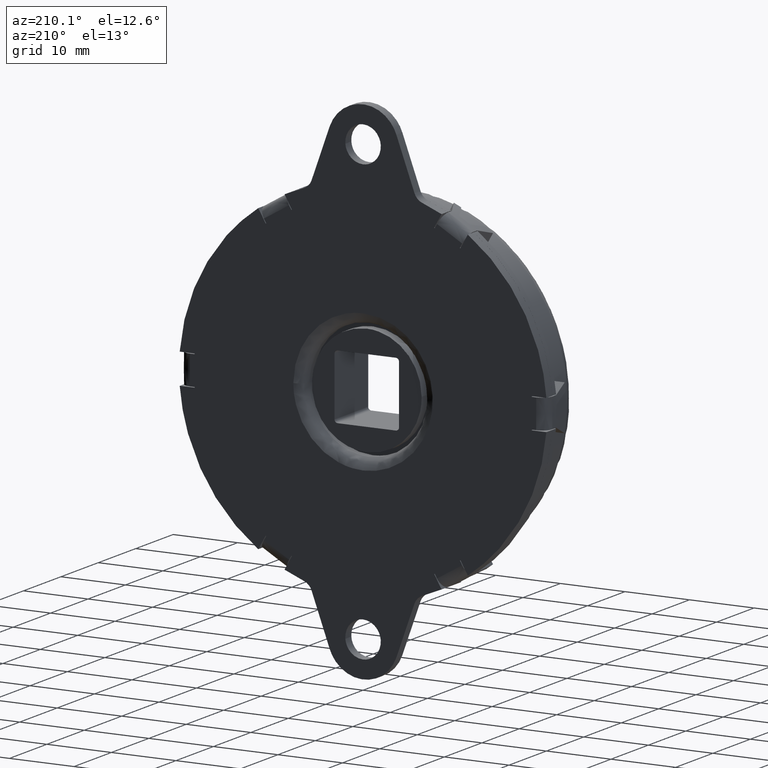
[diagram: clean part render]
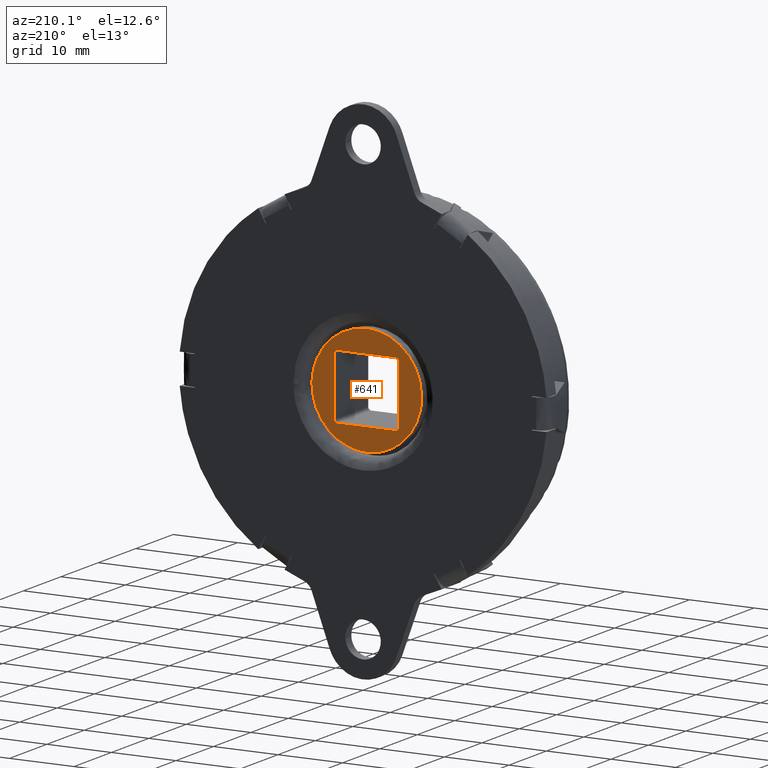
[diagram: same view with one face highlighted and labeled with its STEP entity id]
A machine part, auxiliary view. The second image highlights one B-rep face of the part: STEP entity #641.
In plain terms, the highlighted face is a freeform B-spline surface patch.
Its self-contained STEP definition (entity closure, byte-faithful):
#96=CARTESIAN_POINT('',(-8.499676346044717,-0.999999999999890,0.074175551820762));
#97=VERTEX_POINT('',#96);
#103=CARTESIAN_POINT('',(0.0,-0.999999999999890,-8.500000000000000));
#104=VERTEX_POINT('',#103);
#105=CARTESIAN_POINT('',(0.0,-0.999999999999890,-8.500000000000000));
#106=CARTESIAN_POINT('',(-8.500000000000002,-0.999999999999890,-8.500000000000002));
#107=CARTESIAN_POINT('',(-8.500000000000000,-0.999999999999890,0.0));
#108=CARTESIAN_POINT('',(-8.500000000000000,-0.999999999999890,0.037088482060550));
#109=CARTESIAN_POINT('',(-8.499676346044717,-0.999999999999890,0.074175551820762));
#117=(BOUNDED_CURVE()B_SPLINE_CURVE(2,(#105,#106,#107,#108,#109),.UNSPECIFIED.,.F.,.U.)B_SPLINE_CURVE_WITH_KNOTS((3,2,3),(0.500000000000000,0.750000000000000,0.751539894338493),.UNSPECIFIED.)CURVE()GEOMETRIC_REPRESENTATION_ITEM()RATIONAL_B_SPLINE_CURVE((1.0,0.707106781186548,1.0,0.998195901562265,0.996414028092293))REPRESENTATION_ITEM(''));
#118=EDGE_CURVE('',#104,#97,#117,.T.);
#120=CARTESIAN_POINT('',(8.434262817511357,-0.999999999999890,-1.055088017724293));
#121=VERTEX_POINT('',#120);
#122=CARTESIAN_POINT('',(8.434262817511357,-0.999999999999890,-1.055088017724293));
#123=CARTESIAN_POINT('',(7.502938101194926,-0.999999999999890,-8.500000000000000));
#124=CARTESIAN_POINT('',(0.0,-0.999999999999890,-8.500000000000000));
#132=(BOUNDED_CURVE()B_SPLINE_CURVE(2,(#122,#123,#124),.UNSPECIFIED.,.F.,.U.)B_SPLINE_CURVE_WITH_KNOTS((3,3),(0.271473928972530,0.500000000000000),.UNSPECIFIED.)CURVE()GEOMETRIC_REPRESENTATION_ITEM()RATIONAL_B_SPLINE_CURVE((0.954005430271169,0.732265053895891,1.0))REPRESENTATION_ITEM(''));
#133=EDGE_CURVE('',#121,#104,#132,.T.);
#183=CARTESIAN_POINT('',(0.0,-0.999999999999890,8.500000000000000));
#184=VERTEX_POINT('',#183);
#185=CARTESIAN_POINT('',(0.0,-0.999999999999890,8.500000000000000));
#186=CARTESIAN_POINT('',(8.500000000000002,-0.999999999999890,8.500000000000002));
#187=CARTESIAN_POINT('',(8.500000000000000,-0.999999999999890,0.0));
#188=CARTESIAN_POINT('',(8.500000000000000,-0.999999999999890,-0.529591884080980));
#189=CARTESIAN_POINT('',(8.434262817511357,-0.999999999999890,-1.055088017724293));
#197=(BOUNDED_CURVE()B_SPLINE_CURVE(2,(#185,#186,#187,#188,#189),.UNSPECIFIED.,.F.,.U.)B_SPLINE_CURVE_WITH_KNOTS((3,2,3),(0.0,0.250000000000000,0.271473928972530),.UNSPECIFIED.)CURVE()GEOMETRIC_REPRESENTATION_ITEM()RATIONAL_B_SPLINE_CURVE((1.0,0.707106781186548,1.0,0.974841727290656,0.954005430271169))REPRESENTATION_ITEM(''));
#198=EDGE_CURVE('',#184,#121,#197,.T.);
#200=CARTESIAN_POINT('',(-8.499676346044717,-0.999999999999890,0.074175551820762));
#201=CARTESIAN_POINT('',(-8.426145289889604,-0.999999999999890,8.500000000000000));
#202=CARTESIAN_POINT('',(0.0,-0.999999999999890,8.500000000000000));
#210=(BOUNDED_CURVE()B_SPLINE_CURVE(2,(#200,#201,#202),.UNSPECIFIED.,.F.,.U.)B_SPLINE_CURVE_WITH_KNOTS((3,3),(0.751539894338493,1.0),.UNSPECIFIED.)CURVE()GEOMETRIC_REPRESENTATION_ITEM()RATIONAL_B_SPLINE_CURVE((0.996414028092292,0.708910879624283,1.0))REPRESENTATION_ITEM(''));
#211=EDGE_CURVE('',#97,#184,#210,.T.);
#540=CARTESIAN_POINT('',(-9.348782775904732,-0.999999999999907,9.349149967050698));
#541=CARTESIAN_POINT('',(9.348550836350517,-0.999999999999907,9.349149967050698));
#542=CARTESIAN_POINT('',(-9.348782775904732,-0.999999999999907,-9.349150423026233));
#543=CARTESIAN_POINT('',(9.348550836350517,-0.999999999999907,-9.349150423026233));
#544=B_SPLINE_SURFACE_WITH_KNOTS('',1,1,((#540,#542),(#541,#543)),.UNSPECIFIED.,.F.,.F.,.U.,(2,2),(2,2),(0.0,18.697333612255250),(0.0,18.698300390076930),.UNSPECIFIED.);
#545=ORIENTED_EDGE('',*,*,#198,.T.);
#546=ORIENTED_EDGE('',*,*,#133,.T.);
#547=ORIENTED_EDGE('',*,*,#118,.T.);
#548=ORIENTED_EDGE('',*,*,#211,.T.);
#549=EDGE_LOOP('',(#545,#546,#547,#548));
#550=FACE_OUTER_BOUND('',#549,.T.);
#551=CARTESIAN_POINT('',(4.499999999999915,-0.999999999999890,5.0));
#552=VERTEX_POINT('',#551);
#553=CARTESIAN_POINT('',(-4.500000000000100,-0.999999999999890,5.0));
#554=VERTEX_POINT('',#553);
#555=CARTESIAN_POINT('',(4.499999999999915,-0.999999999999890,5.0));
#556=CARTESIAN_POINT('',(-4.500000000000100,-0.999999999999890,5.0));
#557=QUASI_UNIFORM_CURVE('',1,(#555,#556),.UNSPECIFIED.,.F.,.U.);
#558=EDGE_CURVE('',#552,#554,#557,.T.);
#559=ORIENTED_EDGE('',*,*,#558,.T.);
#560=CARTESIAN_POINT('',(-5.000000000000100,-0.999999999999890,4.500000000000000));
#561=VERTEX_POINT('',#560);
#562=CARTESIAN_POINT('',(-4.500000000000100,-0.999999999999890,4.999999999999999));
#563=CARTESIAN_POINT('',(-5.000000000000100,-0.999999999999890,4.999999999999998));
#564=CARTESIAN_POINT('',(-5.000000000000100,-0.999999999999890,4.500000000000000));
#572=(BOUNDED_CURVE()B_SPLINE_CURVE(2,(#562,#563,#564),.UNSPECIFIED.,.F.,.U.)CURVE()GEOMETRIC_REPRESENTATION_ITEM()QUASI_UNIFORM_CURVE()RATIONAL_B_SPLINE_CURVE((1.0,0.707106781186548,1.0))REPRESENTATION_ITEM(''));
#573=EDGE_CURVE('',#554,#561,#572,.T.);
#574=ORIENTED_EDGE('',*,*,#573,.T.);
#575=CARTESIAN_POINT('',(-5.0,-0.999999999999890,-4.500000000000000));
#576=VERTEX_POINT('',#575);
#577=CARTESIAN_POINT('',(-5.000000000000100,-0.999999999999890,4.500000000000000));
#578=CARTESIAN_POINT('',(-5.0,-0.999999999999890,-4.500000000000000));
#579=QUASI_UNIFORM_CURVE('',1,(#577,#578),.UNSPECIFIED.,.F.,.U.);
#580=EDGE_CURVE('',#561,#576,#579,.T.);
#581=ORIENTED_EDGE('',*,*,#580,.T.);
#582=CARTESIAN_POINT('',(-4.500000000000100,-0.999999999999890,-5.0));
#583=VERTEX_POINT('',#582);
#584=CARTESIAN_POINT('',(-5.0,-0.999999999999890,-4.500000000000000));
#585=CARTESIAN_POINT('',(-5.000000000000100,-0.999999999999890,-4.999999999999998));
#586=CARTESIAN_POINT('',(-4.500000000000100,-0.999999999999890,-4.999999999999999));
#594=(BOUNDED_CURVE()B_SPLINE_CURVE(2,(#584,#585,#586),.UNSPECIFIED.,.F.,.U.)CURVE()GEOMETRIC_REPRESENTATION_ITEM()QUASI_UNIFORM_CURVE()RATIONAL_B_SPLINE_CURVE((1.0,0.707106781186548,1.0))REPRESENTATION_ITEM(''));
#595=EDGE_CURVE('',#576,#583,#594,.T.);
#596=ORIENTED_EDGE('',*,*,#595,.T.);
#597=CARTESIAN_POINT('',(4.499999999999915,-0.999999999999890,-5.0));
#598=VERTEX_POINT('',#597);
#599=CARTESIAN_POINT('',(-4.500000000000100,-0.999999999999890,-5.0));
#600=CARTESIAN_POINT('',(4.499999999999915,-0.999999999999890,-5.0));
#601=QUASI_UNIFORM_CURVE('',1,(#599,#600),.UNSPECIFIED.,.F.,.U.);
#602=EDGE_CURVE('',#583,#598,#601,.T.);
#603=ORIENTED_EDGE('',*,*,#602,.T.);
#604=CARTESIAN_POINT('',(4.999999999999920,-0.999999999999890,-4.500000000000000));
#605=VERTEX_POINT('',#604);
#606=CARTESIAN_POINT('',(4.499999999999915,-0.999999999999890,-4.999999999999999));
#607=CARTESIAN_POINT('',(4.999999999999914,-0.999999999999890,-4.999999999999998));
#608=CARTESIAN_POINT('',(4.999999999999914,-0.999999999999890,-4.500000000000000));
#616=(BOUNDED_CURVE()B_SPLINE_CURVE(2,(#606,#607,#608),.UNSPECIFIED.,.F.,.U.)CURVE()GEOMETRIC_REPRESENTATION_ITEM()QUASI_UNIFORM_CURVE()RATIONAL_B_SPLINE_CURVE((1.0,0.707106781186548,1.0))REPRESENTATION_ITEM(''));
#617=EDGE_CURVE('',#598,#605,#616,.T.);
#618=ORIENTED_EDGE('',*,*,#617,.T.);
#619=CARTESIAN_POINT('',(4.999999999999920,-0.999999999999890,4.500000000000000));
#620=VERTEX_POINT('',#619);
#621=CARTESIAN_POINT('',(4.999999999999920,-0.999999999999890,-4.500000000000000));
#622=CARTESIAN_POINT('',(4.999999999999920,-0.999999999999890,4.500000000000000));
#623=QUASI_UNIFORM_CURVE('',1,(#621,#622),.UNSPECIFIED.,.F.,.U.);
#624=EDGE_CURVE('',#605,#620,#623,.T.);
#625=ORIENTED_EDGE('',*,*,#624,.T.);
#626=CARTESIAN_POINT('',(4.999999999999914,-0.999999999999890,4.500000000000000));
#627=CARTESIAN_POINT('',(4.999999999999914,-0.999999999999890,4.999999999999998));
#628=CARTESIAN_POINT('',(4.499999999999915,-0.999999999999890,4.999999999999999));
#636=(BOUNDED_CURVE()B_SPLINE_CURVE(2,(#626,#627,#628),.UNSPECIFIED.,.F.,.U.)CURVE()GEOMETRIC_REPRESENTATION_ITEM()QUASI_UNIFORM_CURVE()RATIONAL_B_SPLINE_CURVE((1.0,0.707106781186548,1.0))REPRESENTATION_ITEM(''));
#637=EDGE_CURVE('',#620,#552,#636,.T.);
#638=ORIENTED_EDGE('',*,*,#637,.T.);
#639=EDGE_LOOP('',(#559,#574,#581,#596,#603,#618,#625,#638));
#640=FACE_BOUND('',#639,.T.);
#641=ADVANCED_FACE('',(#550,#640),#544,.T.);